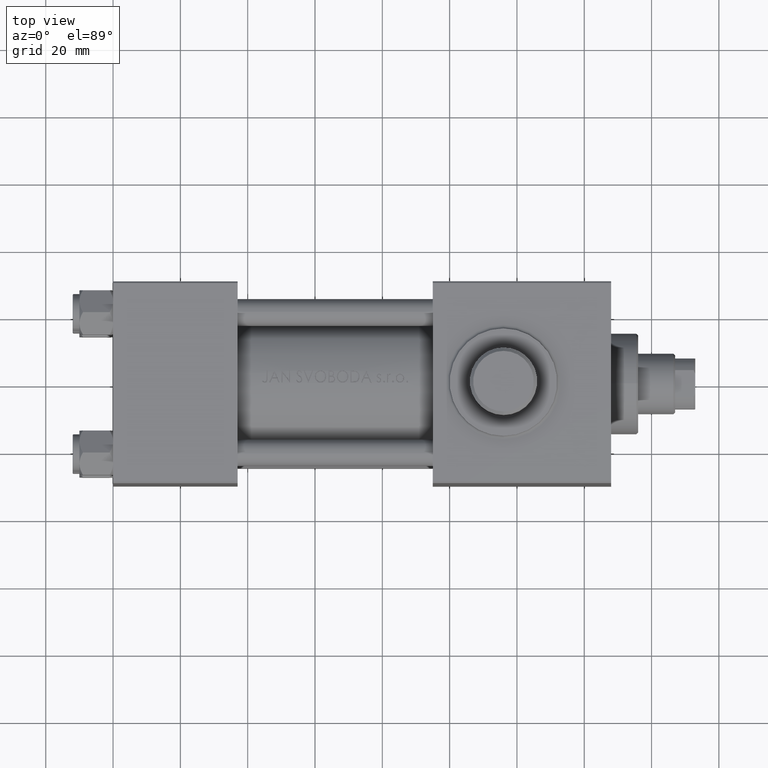
[diagram: clean part render]
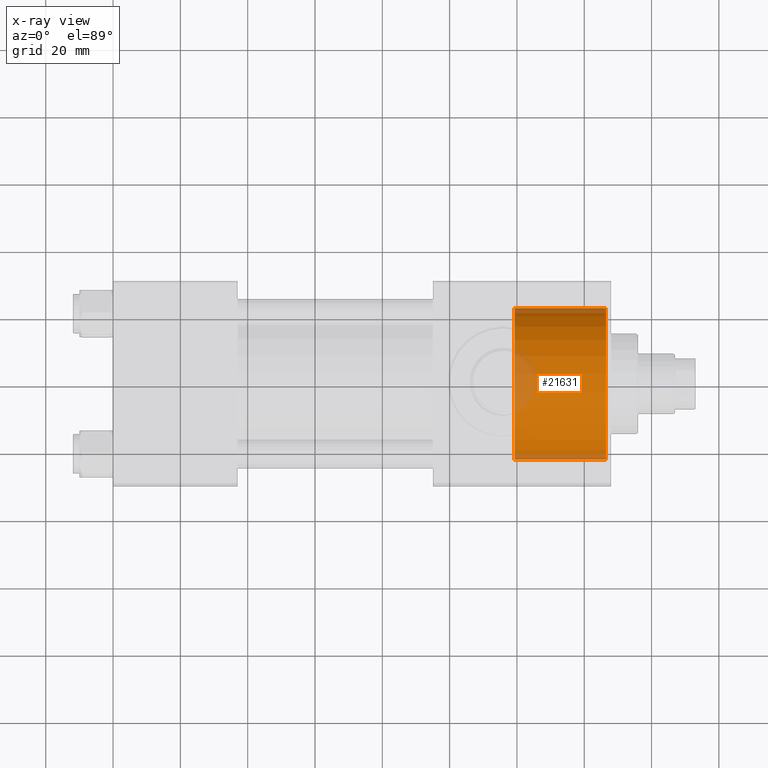
[diagram: x-ray — body ghosted, one internal face saturated and labeled with its STEP entity id]
A machine part, top view, then the same camera in x-ray: the body is ghosted and one INTERNAL B-rep face — a face not visible from any outside direction — is saturated and labeled: STEP entity #21631.
In plain terms, the highlighted cylindrical surface (partial cylindrical patch) has radius 22.5 mm, axis along (1, 0, 0).
Its self-contained STEP definition (entity closure, byte-faithful):
#499 = VERTEX_POINT ( 'NONE', #7467 ) ;
#1812 = DIRECTION ( 'NONE',  ( 0.000000000000000000, 0.000000000000000000, -1.000000000000000000 ) ) ;
#3533 = DIRECTION ( 'NONE',  ( 0.000000000000000000, 0.000000000000000000, 1.000000000000000000 ) ) ;
#6016 = ORIENTED_EDGE ( 'NONE', *, *, #46297, .F. ) ;
#7467 = CARTESIAN_POINT ( 'NONE',  ( 119.2999999999999829, 2.755455298081545172E-15, 22.50000000000000355 ) ) ;
#7733 = AXIS2_PLACEMENT_3D ( 'NONE', #10890, #25390, #42508 ) ;
#8550 = DIRECTION ( 'NONE',  ( 1.000000000000000000, -0.000000000000000000, -0.000000000000000000 ) ) ;
#9082 = CARTESIAN_POINT ( 'NONE',  ( 146.5000000000000284, 0.000000000000000000, -22.50000000000000355 ) ) ;
#9905 = VECTOR ( 'NONE', #8550, 1000.000000000000000 ) ;
#10890 = CARTESIAN_POINT ( 'NONE',  ( 119.2999999999999829, 0.000000000000000000, 0.000000000000000000 ) ) ;
#11554 = ORIENTED_EDGE ( 'NONE', *, *, #28492, .F. ) ;
#14794 = VERTEX_POINT ( 'NONE', #9082 ) ;
#15398 = VERTEX_POINT ( 'NONE', #24146 ) ;
#19134 = DIRECTION ( 'NONE',  ( 1.000000000000000000, 0.000000000000000000, 0.000000000000000000 ) ) ;
#19505 = CARTESIAN_POINT ( 'NONE',  ( 119.2999999999999829, 0.000000000000000000, -22.50000000000000355 ) ) ;
#21090 = CARTESIAN_POINT ( 'NONE',  ( 146.5000000000000284, 0.000000000000000000, 0.000000000000000000 ) ) ;
#21631 = ADVANCED_FACE ( 'NONE', ( #43426 ), #28229, .F. ) ;
#23824 = AXIS2_PLACEMENT_3D ( 'NONE', #21090, #35629, #3533 ) ;
#24146 = CARTESIAN_POINT ( 'NONE',  ( 146.5000000000000284, 2.755455298081545172E-15, 22.50000000000000355 ) ) ;
#25390 = DIRECTION ( 'NONE',  ( 1.000000000000000000, -0.000000000000000000, -0.000000000000000000 ) ) ;
#25948 = LINE ( 'NONE', #36498, #28343 ) ;
#26363 = LINE ( 'NONE', #40660, #9905 ) ;
#27330 = EDGE_CURVE ( 'NONE', #15398, #14794, #33564, .T. ) ;
#28229 = CYLINDRICAL_SURFACE ( 'NONE', #7733, 22.50000000000000355 ) ;
#28343 = VECTOR ( 'NONE', #43757, 1000.000000000000000 ) ;
#28492 = EDGE_CURVE ( 'NONE', #33568, #14794, #25948, .T. ) ;
#28744 = CIRCLE ( 'NONE', #45192, 22.50000000000000355 ) ;
#33389 = EDGE_LOOP ( 'NONE', ( #6016, #44098, #43872, #11554 ) ) ;
#33564 = CIRCLE ( 'NONE', #23824, 22.50000000000000355 ) ;
#33568 = VERTEX_POINT ( 'NONE', #19505 ) ;
#35629 = DIRECTION ( 'NONE',  ( 1.000000000000000000, 0.000000000000000000, 0.000000000000000000 ) ) ;
#36498 = CARTESIAN_POINT ( 'NONE',  ( 119.2999999999999829, 0.000000000000000000, -22.50000000000000355 ) ) ;
#36948 = CARTESIAN_POINT ( 'NONE',  ( 119.2999999999999829, 0.000000000000000000, 0.000000000000000000 ) ) ;
#38220 = EDGE_CURVE ( 'NONE', #499, #15398, #26363, .T. ) ;
#40660 = CARTESIAN_POINT ( 'NONE',  ( 119.2999999999999829, 2.755455298081545172E-15, 22.50000000000000355 ) ) ;
#42508 = DIRECTION ( 'NONE',  ( 0.000000000000000000, 0.000000000000000000, -1.000000000000000000 ) ) ;
#43426 = FACE_OUTER_BOUND ( 'NONE', #33389, .T. ) ;
#43757 = DIRECTION ( 'NONE',  ( 1.000000000000000000, -0.000000000000000000, -0.000000000000000000 ) ) ;
#43872 = ORIENTED_EDGE ( 'NONE', *, *, #27330, .T. ) ;
#44098 = ORIENTED_EDGE ( 'NONE', *, *, #38220, .T. ) ;
#45192 = AXIS2_PLACEMENT_3D ( 'NONE', #36948, #19134, #1812 ) ;
#46297 = EDGE_CURVE ( 'NONE', #499, #33568, #28744, .T. ) ;